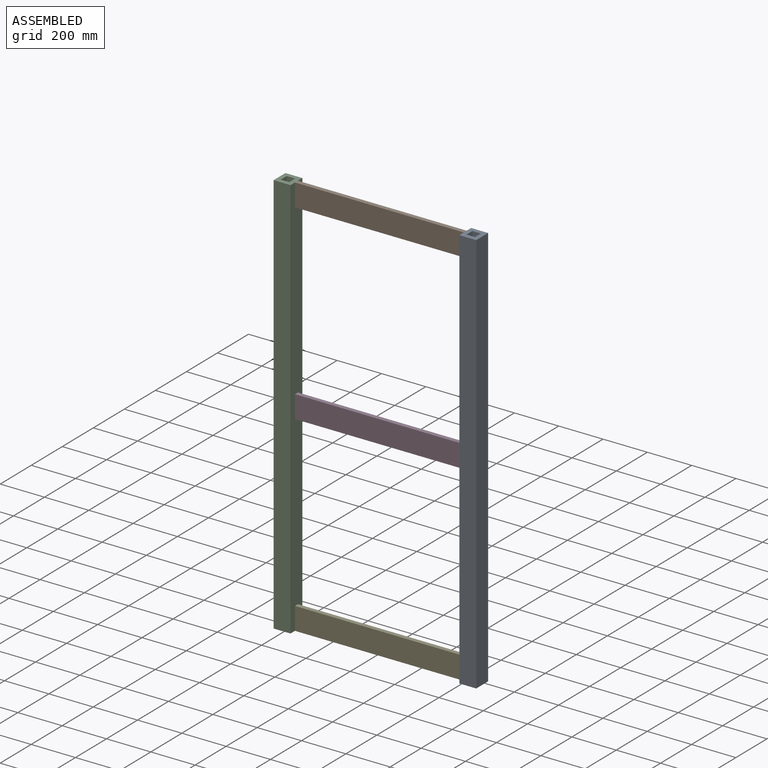
[diagram: assembled view]
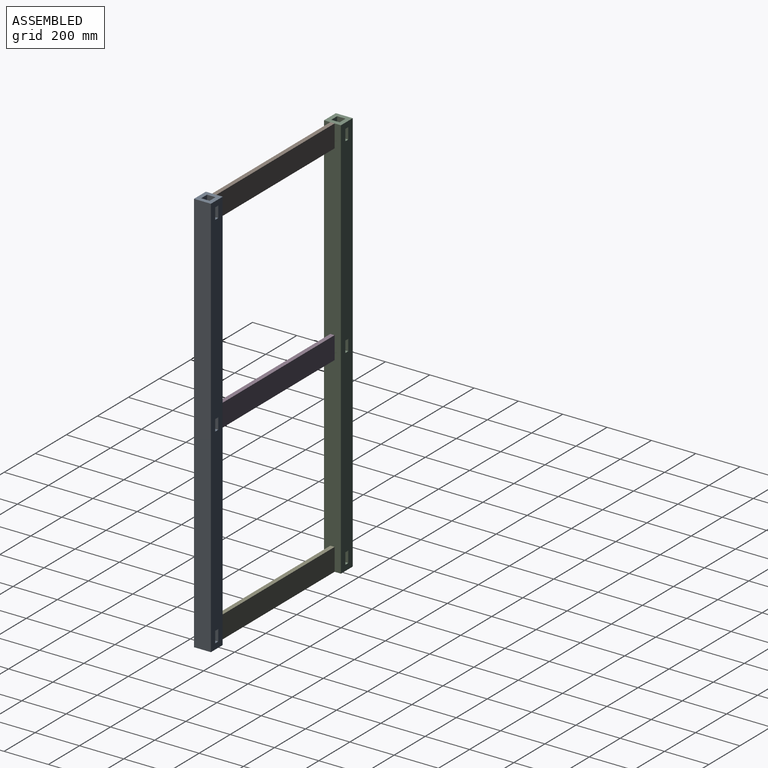
[diagram: assembled view, second angle]
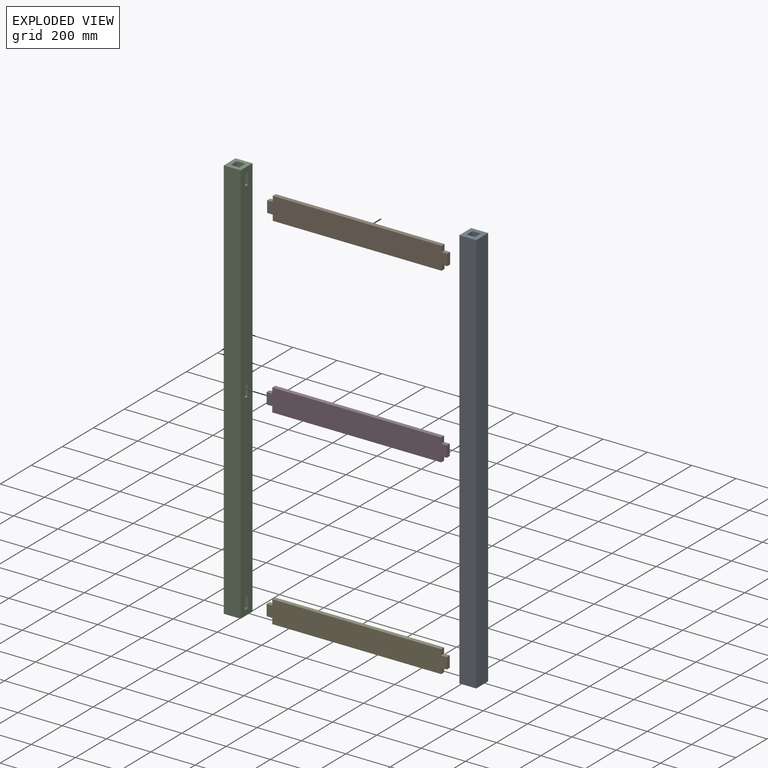
[diagram: exploded view]
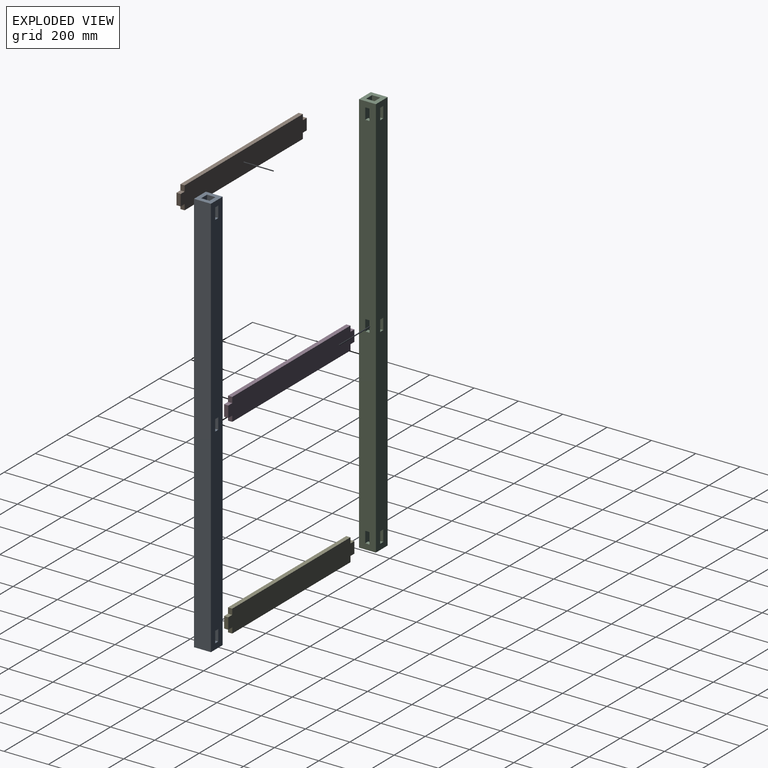
[diagram: exploded view, second angle]
ASSEMBLY  parts=5 mates=12
PART A: 34 faces, bbox 76.2x76.2x1828.8 mm
  f0: plane 76.2x76.2mm, normal (0,0,1), area 4354.8mm2, adj f2,f3,f4,f5,f6,f7,f8,f9
  f1: plane 76.2x76.2mm, normal (0,0,-1), area 4354.8mm2, adj f2,f3,f4,f5,f6,f7,f8,f9
  f2: plane 1828.8x76.2mm, normal (1,0,0), area 139354.6mm2, adj f0,f1,f4,f5
  f3: plane 1828.8x76.2mm, normal (-1,0,0), area 136451.3mm2, adj f0,f1,f4,f5,f22,f23,f24,f25
  f4: plane 1828.8x76.2mm, normal (0,-1,0), area 139354.6mm2, adj f0,f1,f2,f3
  f5: plane 1828.8x76.2mm, normal (0,1,0), area 136451.3mm2, adj f0,f1,f2,f3,f10,f11,f12,f13
  f6: plane 1828.8x38.1mm, normal (-1,0,0), area 69677.3mm2, adj f0,f1,f7,f9
  f7: plane 1828.8x38.1mm, normal (0,-1,0), area 66774.1mm2, adj f0,f1,f6,f8,f10,f11,f12,f13
  f8: plane 1828.8x38.1mm, normal (1,0,0), area 66774.1mm2, adj f0,f1,f7,f9,f22,f23,f24,f25
  f9: plane 1828.8x38.1mm, normal (0,1,0), area 69677.3mm2, adj f0,f1,f6,f8
  f10: plane 50.8x19.05mm, normal (-1,0,0), area 967.7mm2, adj f5,f7,f11,f12
  f11: plane 19.05x19.05mm, normal (0,0,-1), area 362.9mm2, adj f5,f7,f10,f13
  f12: plane 19.05x19.05mm, normal (0,0,1), area 362.9mm2, adj f5,f7,f10,f13
  f13: plane 50.8x19.05mm, normal (1,0,0), area 967.7mm2, adj f5,f7,f11,f12
  f14: plane 50.8x19.05mm, normal (-1,0,0), area 967.7mm2, adj f5,f7,f15,f16
  f15: plane 19.05x19.05mm, normal (0,0,-1), area 362.9mm2, adj f5,f7,f14,f17
  f16: plane 19.05x19.05mm, normal (0,0,1), area 362.9mm2, adj f5,f7,f14,f17
  f17: plane 50.8x19.05mm, normal (1,0,0), area 967.7mm2, adj f5,f7,f15,f16
  f18: plane 19.05x19.05mm, normal (0,0,1), area 362.9mm2, adj f5,f7,f19,f20
  f19: plane 50.8x19.05mm, normal (-1,0,0), area 967.7mm2, adj f5,f7,f18,f21
  f20: plane 50.8x19.05mm, normal (1,0,0), area 967.7mm2, adj f5,f7,f18,f21
  f21: plane 19.05x19.05mm, normal (0,0,-1), area 362.9mm2, adj f5,f7,f19,f20
  f22: plane 50.8x19.05mm, normal (0,1,0), area 967.7mm2, adj f3,f8,f23,f24
  f23: plane 19.05x19.05mm, normal (0,0,1), area 362.9mm2, adj f3,f8,f22,f25
  f24: plane 19.05x19.05mm, normal (0,0,-1), area 362.9mm2, adj f3,f8,f22,f25
  f25: plane 50.8x19.05mm, normal (0,-1,0), area 967.7mm2, adj f3,f8,f23,f24
  f26: plane 19.05x19.05mm, normal (0,0,-1), area 362.9mm2, adj f3,f8,f27,f28
  f27: plane 50.8x19.05mm, normal (0,1,0), area 967.7mm2, adj f3,f8,f26,f29
  f28: plane 50.8x19.05mm, normal (0,-1,0), area 967.7mm2, adj f3,f8,f26,f29
  f29: plane 19.05x19.05mm, normal (0,0,1), area 362.9mm2, adj f3,f8,f27,f28
  f30: plane 19.05x19.05mm, normal (0,0,-1), area 362.9mm2, adj f3,f8,f31,f32
  f31: plane 50.8x19.05mm, normal (0,1,0), area 967.7mm2, adj f3,f8,f30,f33
  f32: plane 50.8x19.05mm, normal (0,-1,0), area 967.7mm2, adj f3,f8,f30,f33
  f33: plane 19.05x19.05mm, normal (0,0,1), area 362.9mm2, adj f3,f8,f31,f32
PART B: 14 faces, bbox 812.8x19.1x101.6 mm
  f0: plane 50.8x19.05mm, normal (-1,0,0), area 967.7mm2, adj f1,f11,f12,f13
  f1: plane 25.4x19.05mm, normal (0,0,-1), area 483.9mm2, adj f0,f2,f12,f13
  f2: plane 25.4x19.05mm, normal (-1,0,0), area 483.9mm2, adj f1,f3,f12,f13
  f3: plane 762x19.05mm, normal (0,0,-1), area 14516.1mm2, adj f2,f4,f12,f13
  f4: plane 25.4x19.05mm, normal (1,0,0), area 483.9mm2, adj f3,f5,f12,f13
  f5: plane 25.4x19.05mm, normal (0,0,-1), area 483.9mm2, adj f4,f6,f12,f13
  f6: plane 50.8x19.05mm, normal (1,0,0), area 967.7mm2, adj f5,f7,f12,f13
  f7: plane 25.4x19.05mm, normal (0,0,1), area 483.9mm2, adj f6,f8,f12,f13
  f8: plane 25.4x19.05mm, normal (1,0,0), area 483.9mm2, adj f7,f9,f12,f13
  f9: plane 762x19.05mm, normal (0,0,1), area 14516.1mm2, adj f8,f10,f12,f13
  f10: plane 25.4x19.05mm, normal (-1,0,0), area 483.9mm2, adj f9,f11,f12,f13
  f11: plane 25.4x19.05mm, normal (0,0,1), area 483.9mm2, adj f0,f10,f12,f13
  f12: plane 812.8x101.6mm, normal (0,-1,0), area 79999.8mm2, adj f0,f1,f2,f3,f4,f5,f6,f7
  f13: plane 812.8x101.6mm, normal (0,1,0), area 79999.8mm2, adj f0,f1,f2,f3,f4,f5,f6,f7
PART C: same geometry as A
PART D: same geometry as B
PART E: same geometry as B
PLACE A rot(axis=(-0.23,0.93,-0.28),0deg) t=(467.16,-471.49,126.97)mm
PLACE B rot(axis=(-0.23,0.93,-0.28),0deg) t=(48.06,-471.49,990.57)mm
PLACE C rot(axis=(0,0,-1),90deg) t=(-371.04,-471.49,126.97)mm
PLACE D t=(48.06,-471.49,126.97)mm
PLACE E rot(axis=(-0.23,0.93,-0.28),0deg) t=(48.06,-471.49,-736.63)mm
MATE planar A.f25 <-> B.f13  axis (0,-1,0) through (438.58,-461.97,990.57)mm
MATE planar E.f8 <-> A.f3  axis (1,0,0) through (429.06,-471.49,-698.53)mm
MATE planar A.f30 <-> E.f7  axis (0,0,-1) through (438.58,-471.49,-711.23)mm
MATE planar A.f24 <-> B.f7  axis (0,0,-1) through (438.58,-471.49,1015.97)mm
MATE planar C.f1 <-> E.f3  axis (0,0,-1) through (-371.04,-471.49,-787.43)mm
MATE planar D.f12 <-> C.f14  axis (0,-1,0) through (48.06,-481.02,126.97)mm
MATE planar A.f3 <-> D.f8  axis (-1,0,0) through (429.06,-471.49,126.97)mm
MATE planar D.f7 <-> A.f26  axis (0,0,1) through (441.76,-471.49,152.37)mm
MATE planar E.f12 <-> A.f31  axis (0,-1,0) through (48.06,-481.02,-736.63)mm
MATE planar C.f5 <-> B.f10  axis (1,0,0) through (-332.94,-471.49,126.97)mm
MATE planar A.f27 <-> D.f12  axis (0,1,0) through (438.58,-481.02,126.97)mm
MATE planar A.f3 <-> B.f4  axis (-1,0,0) through (429.06,-471.49,126.97)mm
